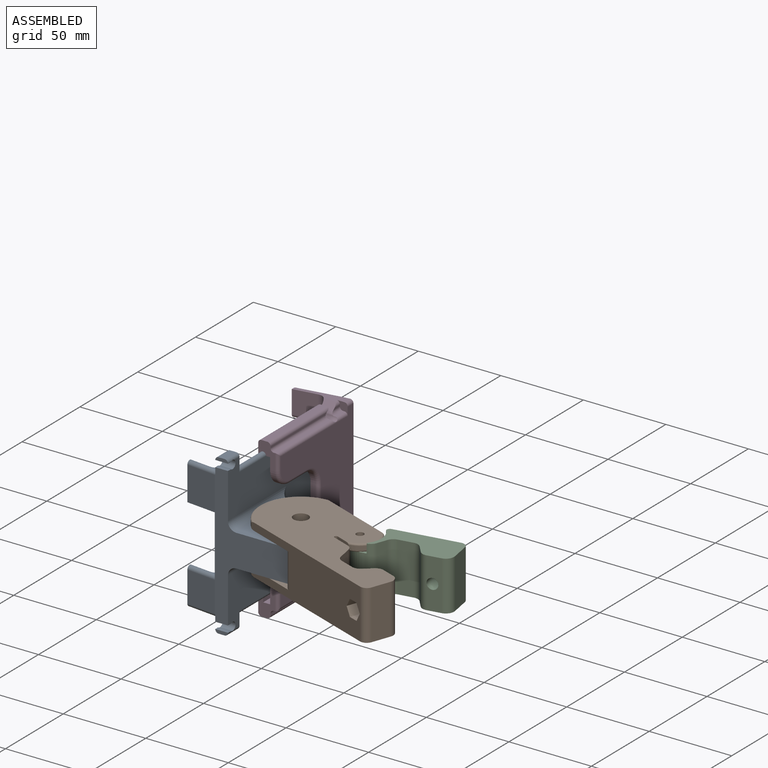
[diagram: assembled view]
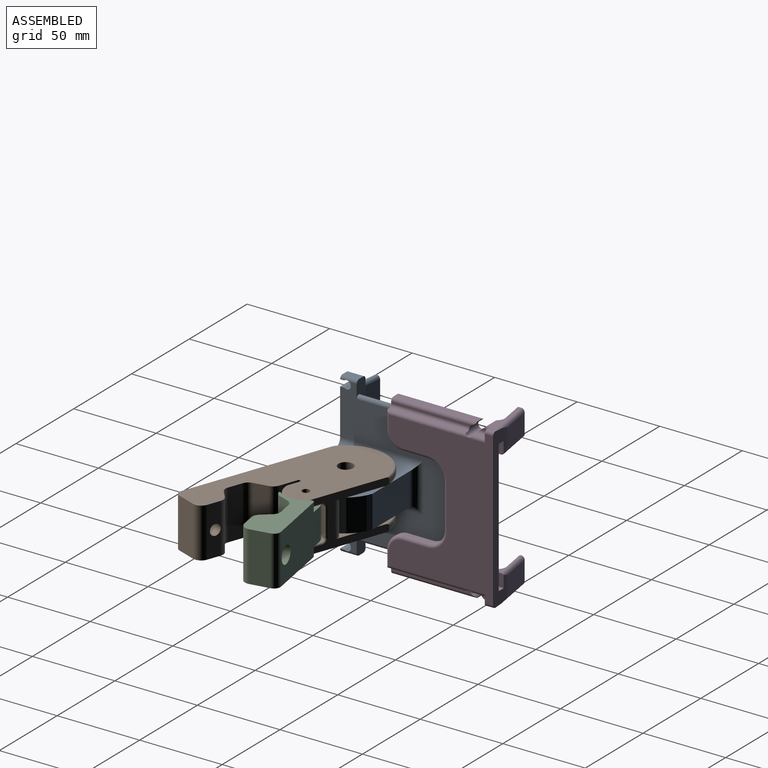
[diagram: assembled view, second angle]
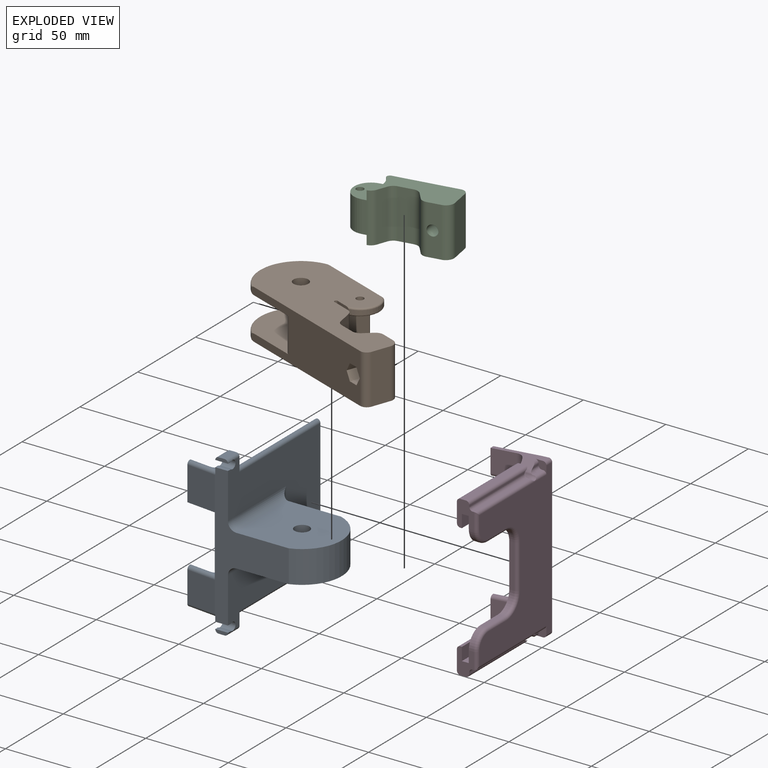
[diagram: exploded view]
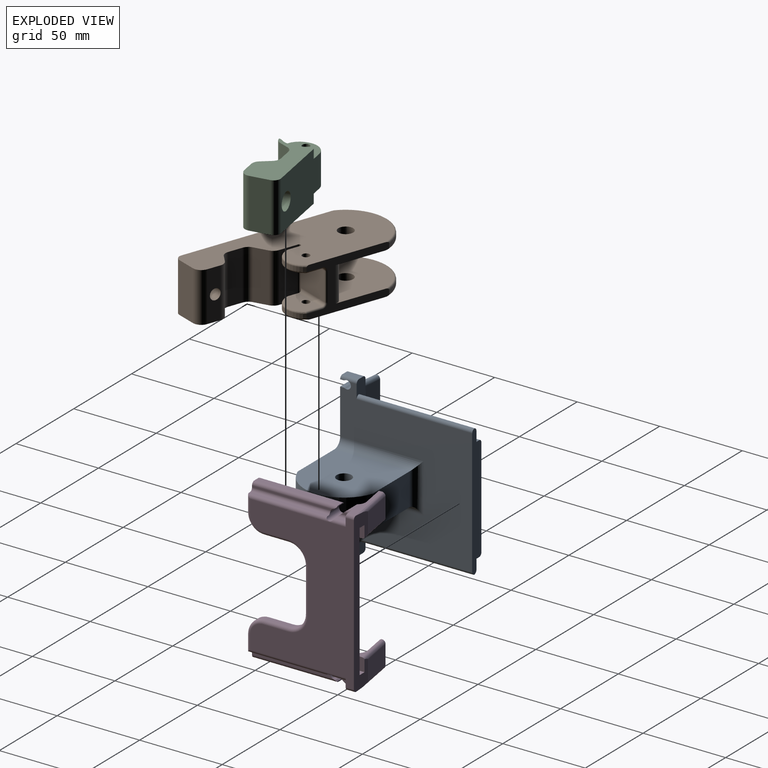
[diagram: exploded view, second angle]
ASSEMBLY  parts=4 mates=3
PART A: 71 faces, bbox 79.5x80.3x96.9 mm
  f0: plane 5.49x3.03mm, normal (0,0,1), area 5.6mm2, adj f36,f51,f53
  f1: plane 5.49x3.03mm, normal (0,0,-1), area 5.6mm2, adj f30,f47,f48
  f2: plane 79.99x8mm, normal (0,1,0), area 566.1mm2, adj f6,f7,f19,f20,f22,f23,f65,f66
  f3: plane 20.5x18mm, normal (-0.11,-0.99,0), area 371.3mm2, adj f5,f8,f18,f51
  f4: plane 18.5x12.45mm, normal (0.11,0.99,0), area 231.7mm2, adj f5,f44,f52,f56
  f5: plane 22.59x4.09mm, normal (-1,0,0), area 87.4mm2, adj f3,f4,f18,f51,f52,f56
  f6: plane 80.09x77.99mm, normal (-1,0,0), area 4575.8mm2, adj f2,f8,f17,f18,f21,f24,f44,f45
  f7: plane 92.6x80mm, normal (1,0,0), area 4702.5mm2, adj f2,f8,f21,f24,f27,f28,f32,f34
  f8: plane 84.75x44.94mm, normal (0,-1,0), area 1406.2mm2, adj f3,f6,f7,f9,f12,f13,f14,f28
  f9: cylinder r=24mm len=45.4mm, axis (0,0,-1), area 1166.7mm2, adj f8,f10,f12,f13
  f10: plane 31.79x19.6mm, normal (0,1,0), area 623.1mm2, adj f9,f12,f13,f39
  f11: cylinder r=4.5mm len=19.6mm, axis (0,0,-1), area 554.2mm2, adj f12,f13
  f12: plane 48x45.4mm, normal (0,0,1), area 1917.2mm2, adj f8,f9,f10,f11,f37
  f13: plane 48x45.4mm, normal (0,0,-1), area 1917.2mm2, adj f8,f9,f10,f11,f38
  f14: plane 18.5x18mm, normal (-0.11,-0.99,0), area 335mm2, adj f8,f16,f47,f58
  f15: plane 18.5x12.45mm, normal (0.11,0.99,0), area 231.7mm2, adj f16,f45,f46,f59
  f16: plane 22.59x4.09mm, normal (-1,0,0), area 86.5mm2, adj f14,f15,f46,f47,f58,f59
  f17: plane 5.19x2.68mm, normal (0,0,1), area 4.7mm2, adj f6,f58,f60
  f18: plane 18x4.69mm, normal (0,0,-1), area 40.7mm2, adj f3,f5,f6,f56,f57
  f19: plane 70x6mm, normal (-1,0,0), area 420mm2, adj f2,f20,f21,f70
  f20: plane 70x2.3mm, normal (0,0,-1), area 161mm2, adj f2,f19,f21,f68
  f21: plane 18.3x8mm, normal (0,1,0), area 99.1mm2, adj f6,f7,f19,f20,f29,f30,f50,f63
  f22: plane 70x6mm, normal (-1,0,0), area 420mm2, adj f2,f23,f24,f66
  f23: plane 70x2.3mm, normal (0,0,1), area 161mm2, adj f2,f22,f24,f67
  f24: plane 18.3x8mm, normal (0,1,0), area 99.1mm2, adj f6,f7,f22,f23,f31,f36,f55,f61
  f25: plane 7.7x2mm, normal (0,-1,0), area 13.7mm2, adj f26,f29,f63,f64
  f26: plane 7.7x1.94mm, normal (0,0,1), area 14.9mm2, adj f25,f42,f63,f64
  f27: cylinder r=2.5mm len=7.7mm, axis (-1,0,0), area 78.8mm2, adj f7,f30,f42,f43,f63,f64
  f28: plane 7.7x1.94mm, normal (0,0,-1), area 14.9mm2, adj f7,f8,f30,f43
  f29: plane 10x3.7mm, normal (0,0,-1), area 37mm2, adj f21,f25,f63,f64
  f30: plane 10.29x8.22mm, normal (-1,0,0), area 38mm2, adj f1,f8,f21,f27,f28,f43,f47,f49
  f31: plane 10x3.7mm, normal (0,0,1), area 37mm2, adj f24,f33,f61,f62
  f32: plane 7.7x1.94mm, normal (0,0,1), area 14.9mm2, adj f7,f8,f36,f40
  f33: plane 7.7x2mm, normal (0,-1,0), area 13.7mm2, adj f31,f35,f61,f62
  f34: cylinder r=2.5mm len=7.7mm, axis (-1,0,0), area 78.8mm2, adj f7,f36,f40,f41,f61,f62
  f35: plane 7.7x1.94mm, normal (0,0,-1), area 14.9mm2, adj f33,f41,f61,f62
  f36: plane 10.29x8.22mm, normal (-1,0,0), area 38mm2, adj f0,f8,f24,f32,f34,f40,f51,f54
  f37: cylinder r=5mm len=50.4mm, axis (0,1,0), area 370.8mm2, adj f7,f8,f12,f39
  f38: cylinder r=5mm len=50.4mm, axis (0,-1,0), area 370.8mm2, adj f7,f8,f13,f39
  f39: cylinder r=5mm len=29.6mm, axis (0,0,-1), area 182.5mm2, adj f7,f10,f37,f38
  f40: cylinder r=2mm len=7.7mm, axis (-1,0,0), area 7.3mm2, adj f7,f32,f34,f36
  f41: cylinder r=2mm len=7.7mm, axis (-1,0,0), area 7.3mm2, adj f34,f35,f61,f62
  f42: cylinder r=2mm len=7.7mm, axis (-1,0,0), area 7.3mm2, adj f26,f27,f63,f64
  f43: cylinder r=2mm len=7.7mm, axis (-1,0,0), area 7.3mm2, adj f7,f27,f28,f30
  f44: cylinder r=5mm len=19.45mm, axis (0,0,-1), area 157.2mm2, adj f4,f6,f53,f54,f57
  f45: cylinder r=5mm len=19.45mm, axis (0,0,-1), area 157.2mm2, adj f6,f15,f48,f49,f60
  f46: cylinder r=2mm len=12.67mm, axis (-0.99,0.11,0), area 38.8mm2, adj f15,f16,f47,f48
  f47: cylinder r=2mm len=18.74mm, axis (0.99,-0.11,0), area 57.7mm2, adj f1,f8,f14,f16,f30,f46,f48
  f48: torus R=7mm, axis (0,0,1), area 17.4mm2, adj f1,f45,f46,f47,f49
  f49: bspline ~5.36x2.09mm, area 7.1mm2, adj f30,f45,f48,f50
  f50: cylinder r=2mm len=1.05mm, axis (0,-1,0), area 0.5mm2, adj f6,f21,f30,f49
  f51: cylinder r=2mm len=18.74mm, axis (0.99,-0.11,0), area 57.7mm2, adj f0,f3,f5,f8,f36,f52,f53
  f52: cylinder r=2mm len=12.67mm, axis (-0.99,0.11,0), area 38.8mm2, adj f4,f5,f51,f53
  f53: torus R=7mm, axis (0,0,1), area 17.4mm2, adj f0,f44,f51,f52,f54
  f54: bspline ~5.36x2.09mm, area 7.1mm2, adj f36,f44,f53,f55
  f55: cylinder r=2mm len=1.05mm, axis (0,-1,0), area 0.5mm2, adj f6,f24,f36,f54
  f56: cylinder r=2mm len=12.67mm, axis (0.99,-0.11,0), area 39mm2, adj f4,f5,f18,f57
  f57: torus R=7mm, axis (0,0,1), area 22mm2, adj f6,f18,f44,f56
  f58: cylinder r=2mm len=18.44mm, axis (0.99,-0.11,0), area 56.7mm2, adj f6,f14,f16,f17,f59,f60
  f59: cylinder r=2mm len=12.67mm, axis (-0.99,0.11,0), area 38.8mm2, adj f15,f16,f58,f60
  f60: torus R=7mm, axis (0,0,1), area 22mm2, adj f6,f17,f45,f58,f59
  f61: cylinder r=2mm len=10mm, axis (0,1,0), area 30.3mm2, adj f24,f31,f33,f34,f35,f36,f41
  f62: cylinder r=2mm len=10mm, axis (0,1,0), area 30.3mm2, adj f7,f24,f31,f33,f34,f35,f41
  f63: cylinder r=2mm len=10mm, axis (0,-1,0), area 30.3mm2, adj f21,f25,f26,f27,f29,f30,f42
  f64: cylinder r=2mm len=10mm, axis (0,-1,0), area 30.3mm2, adj f7,f21,f25,f26,f27,f29,f42
  f65: cylinder r=2mm len=70mm, axis (0,-1,0), area 209.4mm2, adj f2,f7,f24,f66
  f66: cylinder r=2mm len=70mm, axis (0,-1,0), area 209.4mm2, adj f2,f22,f24,f65
  f67: cylinder r=2mm len=70mm, axis (0,-1,0), area 219.9mm2, adj f2,f6,f23,f24
  f68: cylinder r=2mm len=70mm, axis (0,1,0), area 219.9mm2, adj f2,f6,f20,f21
  f69: cylinder r=2mm len=70mm, axis (0,1,0), area 209.4mm2, adj f2,f7,f21,f70
  f70: cylinder r=2mm len=70mm, axis (0,-1,0), area 209.4mm2, adj f2,f19,f21,f69
PART B: 58 faces, bbox 114.7x51.2x30 mm
  f0: plane 94.14x30mm, normal (0,-1,0), area 2051.7mm2, adj f5,f11,f19,f20,f24,f25,f26,f27
  f1: plane 9.43x4.77mm, normal (0,-1,0), area 41.5mm2, adj f4,f20,f21,f38,f43,f46,f49
  f2: cylinder r=4.5mm len=9mm, axis (0,0,-1), area 127.2mm2, adj f20,f24
  f3: cylinder r=2.25mm len=4.5mm, axis (0,0,-1), area 63.6mm2, adj f20,f21
  f4: cylinder r=12mm len=20.7mm, axis (0,0,-1), area 62.6mm2, adj f1,f10,f43,f49
  f5: cylinder r=25mm len=45.4mm, axis (0,0,-1), area 142.3mm2, adj f0,f10,f48,f50
  f6: plane 30x11.45mm, normal (0,1,0), area 343.5mm2, adj f19,f20,f46,f57
  f7: plane 20.7x17mm, normal (1,0,0), area 351.9mm2, adj f37,f38,f42,f46
  f8: plane 9.43x4.77mm, normal (0,-1,0), area 41.5mm2, adj f9,f19,f22,f37,f39,f46,f51
  f9: cylinder r=12mm len=20.7mm, axis (0,0,-1), area 62.6mm2, adj f8,f10,f39,f51
  f10: plane 50.11x30mm, normal (0,1,0), area 528.1mm2, adj f4,f5,f9,f11,f19,f20,f24,f25
  f11: cylinder r=25mm len=45.4mm, axis (0,0,-1), area 142.3mm2, adj f0,f10,f47,f52
  f12: plane 30x11.7mm, normal (1,0,0), area 351mm2, adj f19,f20,f36,f53
  f13: plane 30x8.27mm, normal (0,1,0), area 214.9mm2, adj f19,f20,f33,f53,f54
  f14: plane 30x5.7mm, normal (-0.87,0.5,0), area 197.5mm2, adj f19,f20,f54,f55
  f15: plane 30x8.89mm, normal (0,1,0), area 266.7mm2, adj f19,f20,f55,f56
  f16: cylinder r=4.5mm len=9mm, axis (0,0,-1), area 127.2mm2, adj f19,f25
  f17: plane 30x7.7mm, normal (0.87,0.5,0), area 266.7mm2, adj f19,f20,f56,f57
  f18: cylinder r=2.25mm len=4.5mm, axis (0,0,-1), area 63.6mm2, adj f19,f22
  f19: plane 111.66x45.4mm, normal (0,0,1), area 3408.3mm2, adj f0,f6,f8,f10,f12,f13,f14,f15
  f20: plane 111.66x45.4mm, normal (0,0,-1), area 3408.3mm2, adj f0,f1,f2,f3,f6,f10,f12,f13
  f21: plane 19.7x14mm, normal (0,0,1), area 224.2mm2, adj f1,f3,f38,f43,f45
  f22: plane 19.7x14mm, normal (0,0,-1), area 224.2mm2, adj f8,f18,f37,f39,f40
  f23: cylinder r=25mm len=32.24mm, axis (0,0,1), area 735.8mm2, adj f24,f25,f34,f35
  f24: plane 49x45.4mm, normal (0,0,1), area 1821.1mm2, adj f0,f2,f10,f23,f34,f35,f48
  f25: plane 49x45.4mm, normal (0,0,-1), area 1821.1mm2, adj f0,f10,f16,f23,f34,f35,f47
  f26: plane 6.5x4.95mm, normal (-0.87,0,0.5), area 37.2mm2, adj f0,f27,f31,f32
  f27: plane 6.5x4.95mm, normal (-0.87,0,-0.5), area 37.2mm2, adj f0,f26,f28,f32
  f28: plane 6.5x5.72mm, normal (0,0,-1), area 37.2mm2, adj f0,f27,f29,f32
  f29: plane 6.5x4.95mm, normal (0.87,0,-0.5), area 37.2mm2, adj f0,f28,f30,f32
  f30: plane 6.5x4.95mm, normal (0.87,0,0.5), area 37.2mm2, adj f0,f29,f31,f32
  f31: plane 6.5x5.72mm, normal (0,0,1), area 37.2mm2, adj f0,f26,f30,f32
  f32: plane 11.43x9.9mm, normal (0,-1,0), area 51.7mm2, adj f26,f27,f28,f29,f30,f31,f33
  f33: cylinder r=3.25mm len=14.2mm, axis (0,1,0), area 290mm2, adj f13,f32
  f34: cylinder r=4mm len=21mm, axis (0,0,1), area 190.8mm2, adj f10,f23,f24,f25
  f35: cylinder r=4mm len=21mm, axis (0,0,1), area 190.8mm2, adj f0,f23,f24,f25
  f36: cylinder r=4mm len=30mm, axis (0,0,-1), area 188.5mm2, adj f0,f12,f19,f20
  f37: cylinder r=2mm len=20.7mm, axis (0,-1,0), area 62.7mm2, adj f7,f8,f22,f41,f46
  f38: cylinder r=2mm len=20.7mm, axis (0,1,0), area 62.7mm2, adj f1,f7,f21,f44,f46
  f39: torus R=11mm, axis (0,0,1), area 39.2mm2, adj f8,f9,f22,f40
  f40: cylinder r=1mm len=9.63mm, axis (-1,0,0), area 14.9mm2, adj f10,f22,f39,f41
  f41: torus R=3mm, axis (0,-1,0), area 5.8mm2, adj f10,f37,f40,f42
  f42: cylinder r=1mm len=17mm, axis (0,0,1), area 26.7mm2, adj f7,f10,f41,f44
  f43: torus R=11mm, axis (0,0,1), area 39.2mm2, adj f1,f4,f21,f45
  f44: torus R=3mm, axis (0,-1,0), area 5.8mm2, adj f10,f38,f42,f45
  f45: cylinder r=1mm len=9.63mm, axis (1,0,0), area 14.9mm2, adj f10,f21,f43,f44
  f46: cylinder r=1mm len=30mm, axis (0,0,1), area 64.5mm2, adj f1,f6,f7,f8,f19,f20,f37,f38
  f47: torus R=24mm, axis (0,0,1), area 90.8mm2, adj f0,f10,f11,f25
  f48: torus R=24mm, axis (0,0,1), area 90.8mm2, adj f0,f5,f10,f24
  f49: torus R=11mm, axis (0,0,1), area 40.4mm2, adj f1,f4,f10,f20
  f50: torus R=24mm, axis (0,0,1), area 90.8mm2, adj f0,f5,f10,f20
  f51: torus R=11mm, axis (0,0,1), area 40.4mm2, adj f8,f9,f10,f19
  f52: torus R=24mm, axis (0,0,1), area 90.8mm2, adj f0,f10,f11,f19
  f53: cylinder r=5mm len=30mm, axis (0,0,-1), area 235.6mm2, adj f12,f13,f19,f20
  f54: cylinder r=5mm len=30mm, axis (0,0,-1), area 157.1mm2, adj f13,f14,f19,f20
  f55: cylinder r=5mm len=30mm, axis (0,0,1), area 157.1mm2, adj f14,f15,f19,f20
  f56: cylinder r=5mm len=30mm, axis (0,0,1), area 157.1mm2, adj f15,f17,f19,f20
  f57: cylinder r=5mm len=30mm, axis (0,0,-1), area 157.1mm2, adj f6,f17,f19,f20
PART C: 30 faces, bbox 58.7x20.7x30 mm
  f0: cylinder r=13mm len=16.13mm, axis (0,0,-1), area 96.4mm2, adj f10,f14,f26,f27
  f1: cylinder r=13mm len=16.13mm, axis (0,0,-1), area 96.4mm2, adj f9,f13,f28,f29
  f2: plane 19x2.6mm, normal (0,-1,0), area 49.5mm2, adj f13,f14,f16,f21
  f3: plane 30x5.7mm, normal (0.87,-0.5,0), area 197.5mm2, adj f9,f10,f21,f22
  f4: plane 30x8.89mm, normal (0,-1,0), area 266.7mm2, adj f9,f10,f22,f23
  f5: plane 30x5.7mm, normal (-0.87,-0.5,0), area 197.5mm2, adj f9,f10,f23,f24
  f6: plane 30x8.27mm, normal (0,-1,0), area 214.9mm2, adj f9,f10,f17,f24,f25
  f7: plane 30x11.7mm, normal (1,0,0), area 351mm2, adj f9,f10,f20,f25
  f8: plane 44.66x30mm, normal (0,1,0), area 1179.8mm2, adj f9,f10,f13,f14,f15,f19,f20,f27
  f9: plane 46.06x20.7mm, normal (0,0,1), area 658.5mm2, adj f1,f3,f4,f5,f6,f7,f8,f20
  f10: plane 46.06x20.7mm, normal (0,0,-1), area 658.5mm2, adj f0,f3,f4,f5,f6,f7,f8,f20
  f11: plane 19x0.7mm, normal (-1,0,0), area 13.3mm2, adj f13,f14,f15,f16
  f12: cylinder r=2.25mm len=19mm, axis (0,0,-1), area 268.6mm2, adj f13,f14
  f13: plane 20.7x17mm, normal (0,0,1), area 265.2mm2, adj f1,f2,f8,f11,f12,f15,f16,f28
  f14: plane 20.7x17mm, normal (0,0,-1), area 265.2mm2, adj f0,f2,f8,f11,f12,f15,f16,f26
  f15: cylinder r=10mm len=19mm, axis (0,0,1), area 298.5mm2, adj f8,f11,f13,f14
  f16: cylinder r=10mm len=19mm, axis (0,0,1), area 298.5mm2, adj f2,f11,f13,f14
  f17: cylinder r=3.25mm len=14.2mm, axis (0,1,0), area 290mm2, adj f6,f18
  f18: plane 10.5x10.5mm, normal (0,1,0), area 53.4mm2, adj f17,f19
  f19: cylinder r=5.25mm len=10.5mm, axis (0,1,0), area 214.4mm2, adj f8,f18
  f20: cylinder r=4mm len=30mm, axis (0,0,-1), area 188.5mm2, adj f7,f8,f9,f10
  f21: cylinder r=5mm len=30mm, axis (0,0,-1), area 157.1mm2, adj f2,f3,f9,f10,f26,f28
  f22: cylinder r=5mm len=30mm, axis (0,0,1), area 157.1mm2, adj f3,f4,f9,f10
  f23: cylinder r=5mm len=30mm, axis (0,0,1), area 157.1mm2, adj f4,f5,f9,f10
  f24: cylinder r=5mm len=30mm, axis (0,0,-1), area 157.1mm2, adj f5,f6,f9,f10
  f25: cylinder r=5mm len=30mm, axis (0,0,-1), area 235.6mm2, adj f6,f7,f9,f10
  f26: cylinder r=2mm len=5.5mm, axis (0,0,-1), area 9.1mm2, adj f0,f10,f14,f21
  f27: cylinder r=2mm len=5.5mm, axis (0,0,-1), area 23.5mm2, adj f0,f8,f10,f14
  f28: cylinder r=2mm len=5.5mm, axis (0,0,-1), area 9.1mm2, adj f1,f9,f13,f21
  f29: cylinder r=2mm len=5.5mm, axis (0,0,-1), area 23.5mm2, adj f1,f8,f9,f13
PART D: 87 faces, bbox 32.6x67.6x96.6 mm
  f0: plane 30.2x7.06mm, normal (0,0,1), area 97.3mm2, adj f27,f28,f35,f40,f52,f76,f83,f84
  f1: plane 55.09x11.8mm, normal (-1,0,0), area 627.1mm2, adj f10,f40,f43,f48,f52,f58,f73
  f2: plane 92.6x63mm, normal (1,0,0), area 3517.1mm2, adj f20,f32,f35,f62,f63,f64,f65,f66
  f3: plane 51x3.5mm, normal (0,0,1), area 178.5mm2, adj f10,f41,f73,f75
  f4: plane 15.8x10.2mm, normal (0,-1,0), area 110.8mm2, adj f9,f14,f15,f16,f17,f18,f30,f31
  f5: plane 8.76x5.01mm, normal (0,-0.64,-0.77), area 49mm2, adj f18,f19,f34,f50,f53,f80,f81
  f6: plane 6.26x0.55mm, normal (0,1,0), area 3mm2, adj f7,f9,f79,f82
  f7: plane 7.16x0.75mm, normal (0,0.64,0.77), area 6.2mm2, adj f6,f51,f79,f82
  f8: cylinder r=2.5mm len=12.14mm, axis (-1,0,0), area 102.6mm2, adj f18,f30,f31,f33,f50,f51,f62,f78
  f9: plane 51x3.5mm, normal (0,0,-1), area 178.5mm2, adj f4,f6,f79,f82
  f10: plane 15.8x10.2mm, normal (0,-1,0), area 110.8mm2, adj f1,f3,f11,f12,f13,f14,f38,f39
  f11: plane 63.48x8.29mm, normal (0,0,-1), area 78.3mm2, adj f10,f12,f58,f59,f60
  f12: plane 65.03x7.83mm, normal (1,0,0), area 506.7mm2, adj f10,f11,f13,f20,f60
  f13: plane 65x4.2mm, normal (0,0,-1), area 273mm2, adj f10,f12,f14,f20
  f14: plane 80.6x65mm, normal (-1,0,0), area 3608mm2, adj f4,f10,f13,f15,f20,f21,f22,f23
  f15: plane 65x4.2mm, normal (0,0,1), area 273mm2, adj f4,f14,f16,f20
  f16: plane 65.03x7.83mm, normal (1,0,0), area 506.7mm2, adj f4,f15,f17,f20,f55
  f17: plane 63.48x8.29mm, normal (0,0,1), area 78.3mm2, adj f4,f16,f54,f55,f56
  f18: plane 55.09x11.8mm, normal (-1,0,0), area 627.1mm2, adj f4,f5,f8,f50,f53,f54,f82
  f19: plane 30.2x7.06mm, normal (0,0,-1), area 97.3mm2, adj f5,f24,f25,f32,f53,f80,f85,f86
  f20: plane 96.57x12.2mm, normal (0,1,0), area 626.4mm2, adj f2,f12,f13,f14,f15,f16,f26,f29
  f21: plane 15x3mm, normal (0,0,1), area 45mm2, adj f14,f44,f46,f65
  f22: plane 15x3mm, normal (0,0,-1), area 45mm2, adj f14,f45,f47,f70
  f23: plane 26.6x3mm, normal (0,-1,0), area 79.8mm2, adj f14,f46,f47,f67
  f24: plane 14.17x13.8mm, normal (0.17,-0.99,0), area 198.3mm2, adj f19,f25,f53,f57
  f25: plane 15.8x4mm, normal (-1,0,0), area 60.6mm2, adj f19,f24,f26,f55,f57,f86
  f26: plane 20x11.8mm, normal (-0.17,0.99,0), area 239.3mm2, adj f20,f25,f55,f86
  f27: plane 14.17x13.8mm, normal (0.17,-0.99,0), area 198.3mm2, adj f0,f28,f52,f61
  f28: plane 15.8x4mm, normal (-1,0,0), area 60.6mm2, adj f0,f27,f29,f60,f61,f84
  f29: plane 20x11.8mm, normal (-0.17,0.99,0), area 239.3mm2, adj f20,f28,f60,f84
  f30: plane 47.71x0.7mm, normal (0,0,-1), area 33.4mm2, adj f4,f8,f62,f78
  f31: plane 48.5x1mm, normal (1,0,0), area 48mm2, adj f4,f8,f78,f79
  f32: plane 7x6.7mm, normal (0,-1,0), area 23.5mm2, adj f2,f19,f33,f34,f62,f80,f81,f85
  f33: plane 7.71x0.7mm, normal (0,0,-1), area 5.4mm2, adj f8,f32,f62,f81
  f34: plane 5.7x1mm, normal (1,0,0), area 5.1mm2, adj f5,f32,f80,f81
  f35: plane 7x6.7mm, normal (0,-1,0), area 23.5mm2, adj f0,f2,f36,f37,f69,f76,f77,f83
  f36: plane 7.71x0.7mm, normal (0,0,1), area 5.4mm2, adj f35,f43,f69,f77
  f37: plane 5.7x1mm, normal (1,0,0), area 5.1mm2, adj f35,f40,f76,f77
  f38: plane 47.71x0.7mm, normal (0,0,1), area 33.4mm2, adj f10,f43,f69,f74
  f39: plane 48.5x1mm, normal (1,0,0), area 48mm2, adj f10,f43,f74,f75
  f40: plane 8.76x5.01mm, normal (0,-0.64,0.77), area 49mm2, adj f0,f1,f37,f48,f52,f76,f77
  f41: plane 6.26x0.55mm, normal (0,1,0), area 3mm2, adj f3,f42,f73,f75
  f42: plane 7.16x0.75mm, normal (0,0.64,-0.77), area 6.2mm2, adj f41,f49,f73,f75
  f43: cylinder r=2.5mm len=12.14mm, axis (-1,0,0), area 102.6mm2, adj f1,f36,f38,f39,f48,f49,f69,f73
  f44: cylinder r=10mm len=10mm, axis (-1,0,0), area 47.1mm2, adj f4,f14,f21,f64
  f45: cylinder r=10mm len=10mm, axis (1,0,0), area 47.1mm2, adj f10,f14,f22,f71
  f46: cylinder r=10mm len=10mm, axis (1,0,0), area 47.1mm2, adj f14,f21,f23,f66
  f47: cylinder r=10mm len=10mm, axis (-1,0,0), area 47.1mm2, adj f14,f22,f23,f68
  f48: cylinder r=2mm len=9.13mm, axis (-1,0,0), area 7.9mm2, adj f1,f40,f43,f77
  f49: cylinder r=2mm len=7.4mm, axis (-1,0,0), area 6.9mm2, adj f42,f43,f73,f75
  f50: cylinder r=2mm len=9.13mm, axis (-1,0,0), area 7.9mm2, adj f5,f8,f18,f81
  f51: cylinder r=2mm len=7.4mm, axis (-1,0,0), area 6.9mm2, adj f7,f8,f79,f82
  f52: cylinder r=5mm len=13.8mm, axis (0,0,1), area 116.5mm2, adj f0,f1,f27,f40,f59
  f53: cylinder r=5mm len=13.8mm, axis (0,0,1), area 116.5mm2, adj f5,f18,f19,f24,f56
  f54: cylinder r=2mm len=55.09mm, axis (0,-1,0), area 173.1mm2, adj f4,f17,f18,f56
  f55: cylinder r=2mm len=23.58mm, axis (0.99,0.17,0), area 70mm2, adj f16,f17,f20,f25,f26,f56,f57
  f56: torus R=7mm, axis (0,0,-1), area 31.2mm2, adj f17,f53,f54,f55,f57
  f57: cylinder r=2mm len=14.5mm, axis (-0.99,-0.17,0), area 44.4mm2, adj f24,f25,f55,f56
  f58: cylinder r=2mm len=55.09mm, axis (0,-1,0), area 173.1mm2, adj f1,f10,f11,f59
  f59: torus R=7mm, axis (0,0,1), area 31.2mm2, adj f11,f52,f58,f60,f61
  f60: cylinder r=2mm len=23.58mm, axis (-0.99,-0.17,0), area 70mm2, adj f11,f12,f20,f28,f29,f59,f61
  f61: cylinder r=2mm len=14.5mm, axis (0.99,0.17,0), area 44.4mm2, adj f27,f28,f59,f60
  f62: cylinder r=2mm len=60mm, axis (0,1,0), area 176.4mm2, adj f2,f8,f30,f32,f33,f63
  f63: cylinder r=2mm len=10mm, axis (0,0,1), area 29.1mm2, adj f2,f4,f62,f64
  f64: torus R=8mm, axis (-1,0,0), area 45.8mm2, adj f2,f44,f63,f65
  f65: cylinder r=2mm len=15mm, axis (0,1,0), area 47.1mm2, adj f2,f21,f64,f66
  f66: torus R=12mm, axis (-1,0,0), area 52.9mm2, adj f2,f46,f65,f67
  f67: cylinder r=2mm len=26.6mm, axis (0,0,1), area 83.6mm2, adj f2,f23,f66,f68
  f68: torus R=12mm, axis (-1,0,0), area 52.9mm2, adj f2,f47,f67,f70
  f69: cylinder r=2mm len=60mm, axis (0,-1,0), area 176.4mm2, adj f2,f35,f36,f38,f43,f72
  f70: cylinder r=2mm len=15mm, axis (0,1,0), area 47.1mm2, adj f2,f22,f68,f71
  f71: torus R=8mm, axis (-1,0,0), area 45.8mm2, adj f2,f45,f70,f72
  f72: cylinder r=2mm len=10mm, axis (0,0,1), area 29.1mm2, adj f2,f10,f69,f71
  f73: cylinder r=2mm len=51mm, axis (0,-1,0), area 158.6mm2, adj f1,f3,f10,f41,f42,f43,f49
  f74: cylinder r=2mm len=47.71mm, axis (0,1,0), area 149.5mm2, adj f10,f38,f39,f43
  f75: cylinder r=2mm len=51mm, axis (0,-1,0), area 158.6mm2, adj f3,f10,f39,f41,f42,f43,f49
  f76: cylinder r=2mm len=4.51mm, axis (0,-1,0), area 9.4mm2, adj f0,f35,f37,f40
  f77: cylinder r=2mm len=7.71mm, axis (0,1,0), area 22.3mm2, adj f35,f36,f37,f40,f43,f48
  f78: cylinder r=2mm len=47.71mm, axis (0,-1,0), area 149.5mm2, adj f4,f8,f30,f31
  f79: cylinder r=2mm len=51mm, axis (0,-1,0), area 158.6mm2, adj f4,f6,f7,f8,f9,f31,f51
  f80: cylinder r=2mm len=4.51mm, axis (0,-1,0), area 9.4mm2, adj f5,f19,f32,f34
  f81: cylinder r=2mm len=7.71mm, axis (0,-1,0), area 22.3mm2, adj f5,f8,f32,f33,f34,f50
  f82: cylinder r=2mm len=51mm, axis (0,-1,0), area 158.6mm2, adj f4,f6,f7,f8,f9,f18,f51
  f83: cylinder r=2mm len=5mm, axis (0,-1,0), area 15.7mm2, adj f0,f2,f20,f35,f84
  f84: cylinder r=2mm len=30.84mm, axis (0.99,0.17,0), area 77.4mm2, adj f0,f20,f28,f29,f83
  f85: cylinder r=2mm len=5mm, axis (0,-1,0), area 15.7mm2, adj f2,f19,f20,f32,f86
  f86: cylinder r=2mm len=30.84mm, axis (-0.99,-0.17,0), area 77.4mm2, adj f19,f20,f25,f26,f85
PLACE A t=(8.66,-15.67,2.7)mm
PLACE B rot(axis=(0,0,-1),20deg) t=(4.22,-35.16,3.4)mm
PLACE C rot(axis=(0,0,1),10deg) t=(11.89,-22.84,4.4)mm
PLACE D t=(11.16,-5.5,0.4)mm
MATE slider A.f66 <-> D.f10  axis (0,-1,0) through (-80.04,6.63,40.7)mm
MATE revolute C.f0 <-> B.f3  axis (0,0,1) through (-14.93,-14.68,13.9)mm
MATE revolute B.f24 <-> A.f9  axis (0,0,1) through (-49.34,-15.67,-7.1)mm
